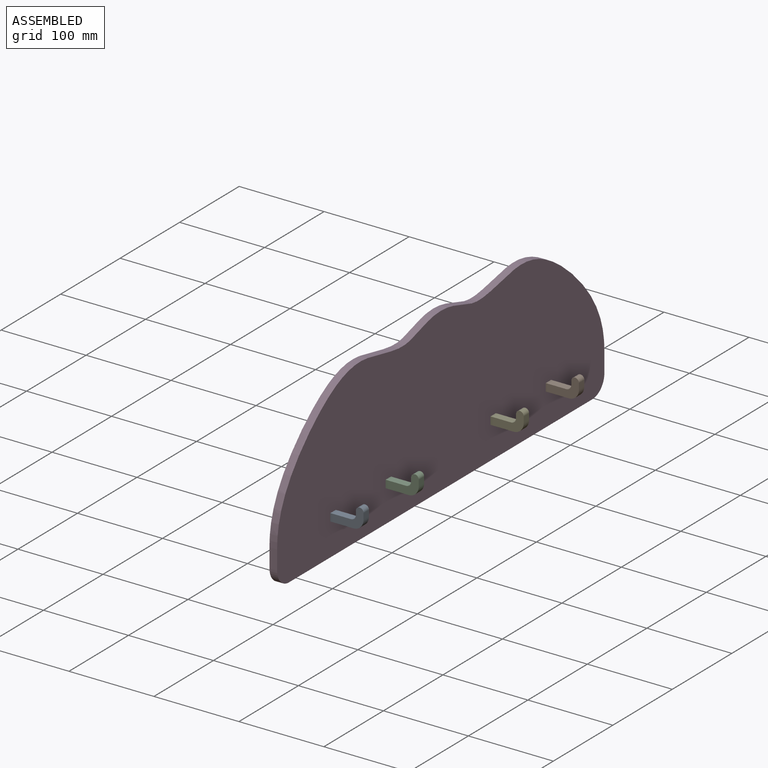
[diagram: assembled view]
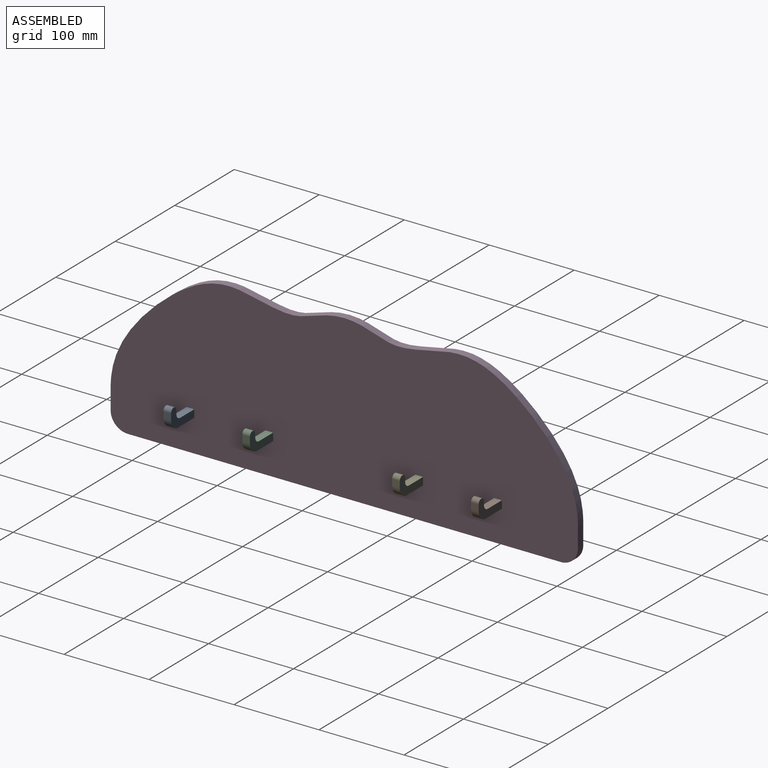
[diagram: assembled view, second angle]
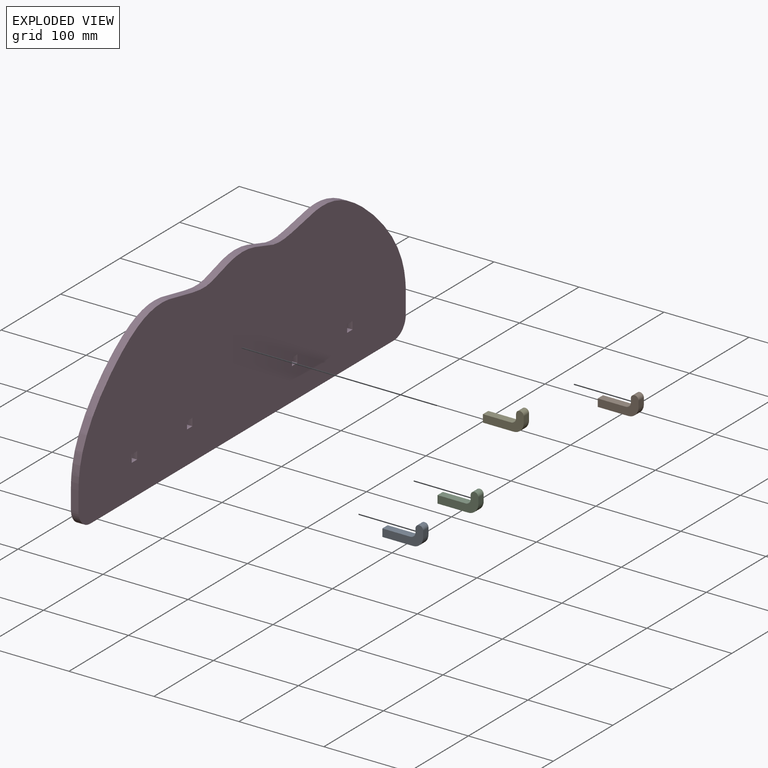
[diagram: exploded view]
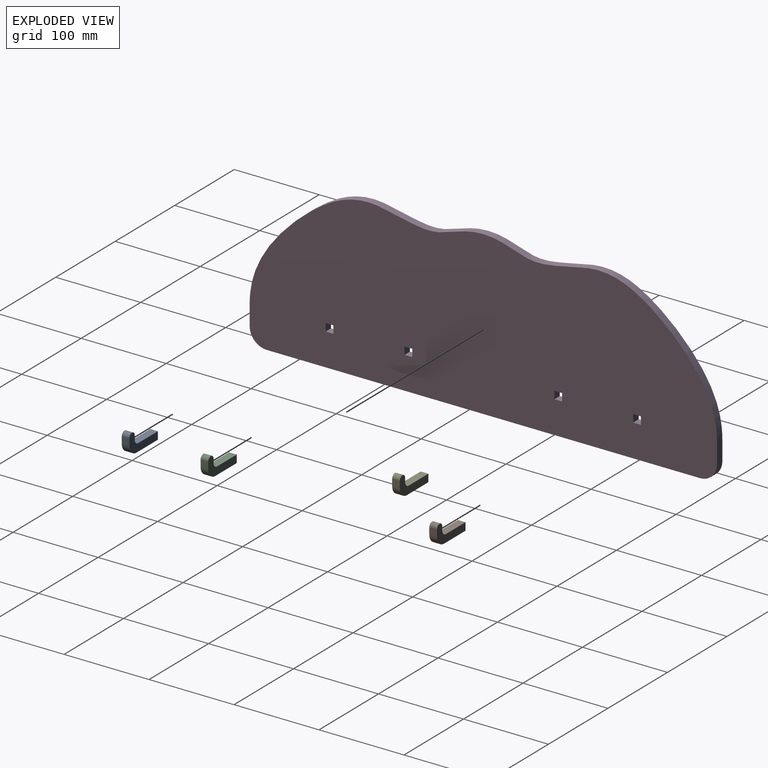
[diagram: exploded view, second angle]
ASSEMBLY  parts=5 mates=4
PART A: 10 faces, bbox 48x9x24 mm
  f0: plane 9x9mm, normal (-1,0,0), area 81mm2, adj f1,f7,f8,f9
  f1: plane 36x9mm, normal (0,0,-1), area 324mm2, adj f0,f2,f8,f9
  f2: cylinder r=12mm len=12mm, axis (0,1,0), area 169.6mm2, adj f1,f3,f8,f9
  f3: plane 9x7.5mm, normal (1,0,0), area 67.5mm2, adj f2,f4,f8,f9
  f4: cylinder r=4.5mm len=9mm, axis (0,1,0), area 127.2mm2, adj f3,f5,f8,f9
  f5: plane 9x4.5mm, normal (-1,0,0), area 40.5mm2, adj f4,f6,f8,f9
  f6: cylinder r=6mm len=9mm, axis (0,1,0), area 84.8mm2, adj f5,f7,f8,f9
  f7: plane 33x9mm, normal (0,0,1), area 297mm2, adj f0,f6,f8,f9
  f8: plane 48x24mm, normal (0,-1,0), area 535.1mm2, adj f0,f1,f2,f3,f4,f5,f6,f7
  f9: plane 48x24mm, normal (0,1,0), area 535.1mm2, adj f0,f1,f2,f3,f4,f5,f6,f7
PART B: same geometry as A
PART C: same geometry as A
PART D: 25 faces, bbox 550x9x192.7 mm
  f0: plane 22.61x9mm, normal (-1,0,0), area 203.5mm2, adj f1,f22,f23,f24
  f1: cylinder r=20mm len=20mm, axis (0,1,0), area 282.7mm2, adj f0,f2,f23,f24
  f2: plane 510x9mm, normal (0,0,-1), area 4590mm2, adj f1,f3,f23,f24
  f3: cylinder r=20mm len=20mm, axis (0,1,0), area 282.7mm2, adj f2,f4,f23,f24
  f4: plane 22.61x9mm, normal (1,0,0), area 203.5mm2, adj f3,f5,f23,f24
  f5: extruded ~275x148.74mm, area 3207.9mm2, adj f4,f22,f23,f24
  f6: plane 9x9mm, normal (-1,0,0), area 81mm2, adj f7,f18,f23,f24
  f7: plane 9x9mm, normal (0,0,1), area 81mm2, adj f6,f8,f23,f24
  f8: plane 9x9mm, normal (1,0,0), area 81mm2, adj f7,f18,f23,f24
  f9: plane 9x9mm, normal (-1,0,0), area 81mm2, adj f10,f19,f23,f24
  f10: plane 9x9mm, normal (0,0,1), area 81mm2, adj f9,f11,f23,f24
  f11: plane 9x9mm, normal (1,0,0), area 81mm2, adj f10,f19,f23,f24
  f12: plane 9x9mm, normal (0,0,1), area 81mm2, adj f13,f20,f23,f24
  f13: plane 9x9mm, normal (1,0,0), area 81mm2, adj f12,f14,f23,f24
  f14: plane 9x9mm, normal (0,0,-1), area 81mm2, adj f13,f20,f23,f24
  f15: plane 9x9mm, normal (-1,0,0), area 81mm2, adj f16,f21,f23,f24
  f16: plane 9x9mm, normal (0,0,1), area 81mm2, adj f15,f17,f23,f24
  f17: plane 9x9mm, normal (1,0,0), area 81mm2, adj f16,f21,f23,f24
  f18: plane 9x9mm, normal (0,0,-1), area 81mm2, adj f6,f8,f23,f24
  f19: plane 9x9mm, normal (0,0,-1), area 81mm2, adj f9,f11,f23,f24
  f20: plane 9x9mm, normal (-1,0,0), area 81mm2, adj f12,f14,f23,f24
  f21: plane 9x9mm, normal (0,0,-1), area 81mm2, adj f15,f17,f23,f24
  f22: extruded ~275x148.74mm, area 3207.9mm2, adj f0,f5,f23,f24
  f23: plane 550x192.69mm, normal (0,-1,0), area 91383.3mm2, adj f0,f1,f2,f3,f4,f5,f6,f7
  f24: plane 550x192.69mm, normal (0,1,0), area 91383.3mm2, adj f0,f1,f2,f3,f4,f5,f6,f7
PART E: same geometry as A
PLACE A t=(-140.75,-49.06,-140.94)mm
PLACE B t=(-140.75,312.92,-140.94)mm
PLACE C t=(-140.75,43.75,-140.94)mm
PLACE D rot(axis=(0,0,1),90deg) t=(-140.75,127.43,-79.05)mm
PLACE E t=(-140.75,220.12,-140.94)mm
MATE fastened E.f0 <-> D.f24  axis (-1,0,0) through (-140.75,215.62,-136.44)mm
MATE fastened D.f24 <-> A.f0  axis (-1,0,0) through (-140.75,-49.06,-136.44)mm
MATE fastened B.f0 <-> D.f24  axis (-1,0,0) through (-140.75,308.42,-136.44)mm
MATE fastened D.f24 <-> C.f0  axis (-1,0,0) through (-140.75,39.25,-136.44)mm
